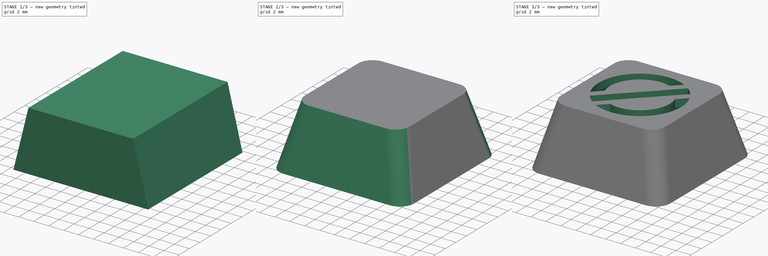
[diagram: build sequence overview — one tinted view per stage of 3, left to right]
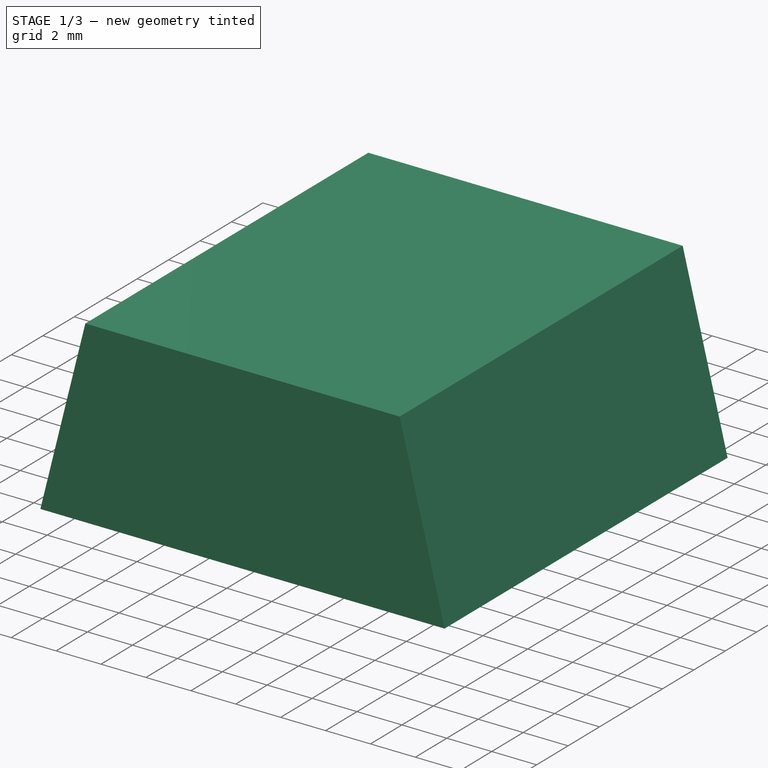
[diagram: stage 1 of 3 — iso view after this stage's code; geometry added in this stage tinted green]
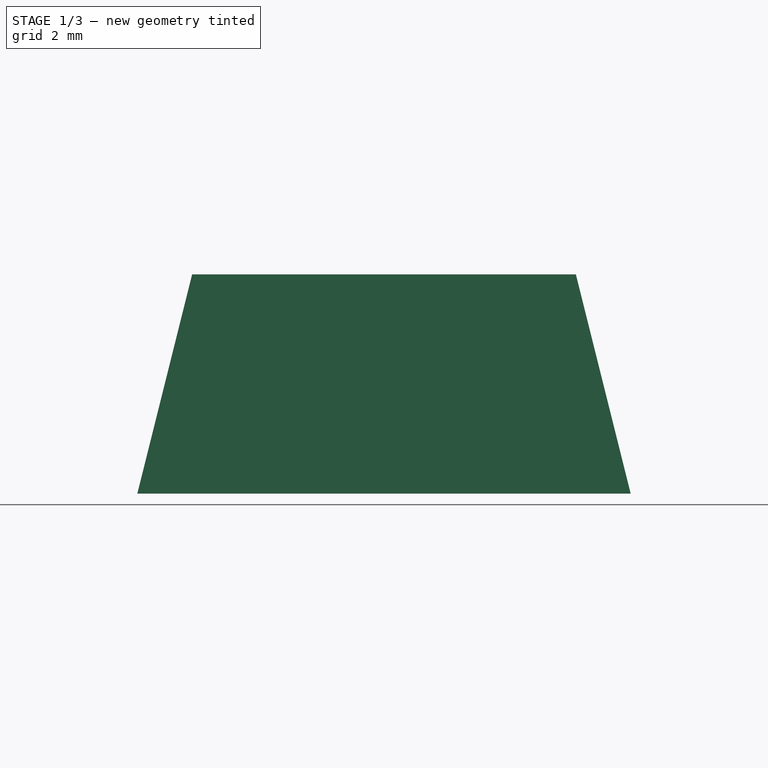
[diagram: stage 1 of 3 — front view after this stage's code; geometry added in this stage tinted green]
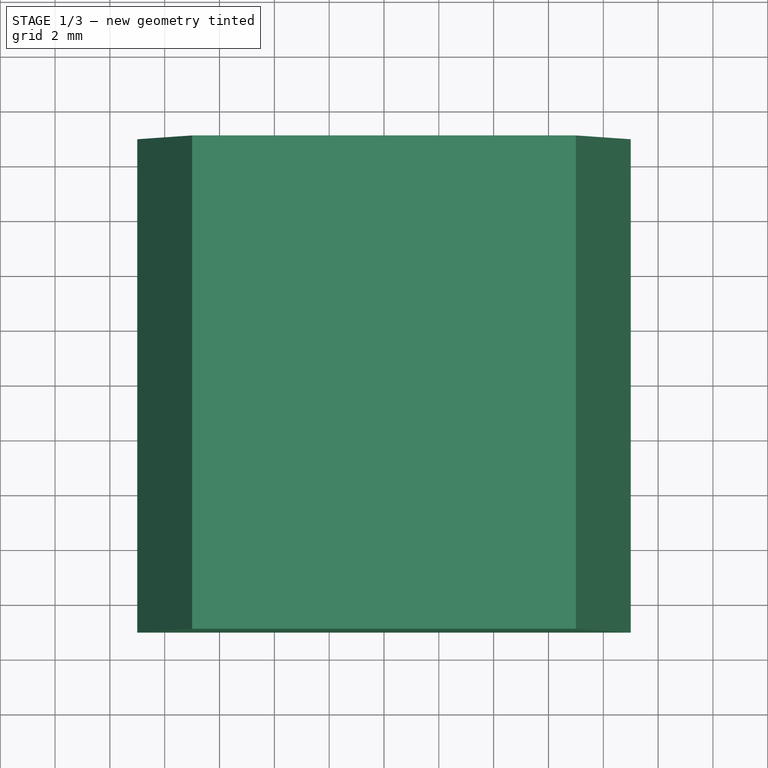
[diagram: stage 1 of 3 — top view after this stage's code; geometry added in this stage tinted green]
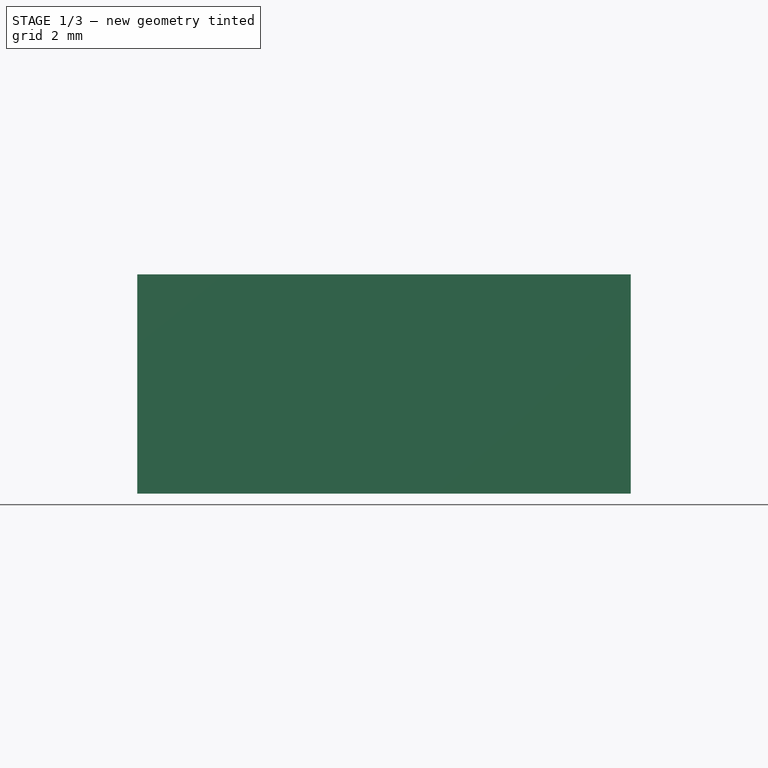
[diagram: stage 1 of 3 — right view after this stage's code; geometry added in this stage tinted green]
FCSTD DOCUMENT  (FreeCAD 1.0R38806 (Git))
Label: keycap 1u BO
License: All rights reserved
LicenseURL: http://en.wikipedia.org/wiki/All_rights_reserved
objects: Sketcher::SketchObject×4, PartDesign::Pocket×3, PartDesign::Pad×1, PartDesign::Fillet×1, PartDesign::Thickness×1, PartDesign::Body×1
note: 27 computed .brp shape members not serialized (recipe doc carries the construction recipe); baked Part::Feature solids carry a one-line shape summary decoded from their .brp

FEATURE [Sketcher::SketchObject] Sketch
  ArcFitTolerance = 1e-06
  AttachmentSupport = -> [XY_Plane]
  FullyConstrained = true
  MakeInternals = false
  MapMode = 5
  sketch-geometry (5):
    g0: LineSegment StartX=-9 StartY=-9 StartZ=0 EndX=9 EndY=-9 EndZ=0
    g1: LineSegment StartX=9 StartY=-9 StartZ=0 EndX=9 EndY=9 EndZ=0
    g2: LineSegment StartX=9 StartY=9 StartZ=0 EndX=-9 EndY=9 EndZ=0
    g3: LineSegment StartX=-9 StartY=9 StartZ=0 EndX=-9 EndY=-9 EndZ=0
    g4: GeomPoint [constr] X=0 Y=0 Z=0
  constraints (12):
    c: Coincident(g0,g1)
    c: Coincident(g1,g2)
    c: Coincident(g2,g3)
    c: Coincident(g3,g0)
    c: Horizontal(g0)
    c: Horizontal(g2)
    c: Vertical(g1)
    c: Vertical(g3)
    c: Symmetric(g2,g0,g4)
    c: Distance(g0,g2) = 18
    c: Coincident(g4,g-1)
    c: Equal(g0,g3)
FEATURE [PartDesign::Pad] Pad
  Direction = (0,0,1)
  Length = 8
  Length2 = 10
  Profile = -> Sketch
  ReferenceAxis = -> Sketch [N_Axis]
  Suppressed = false
  Type = 0
FEATURE [Sketcher::SketchObject] Sketch001
  ArcFitTolerance = 1e-06
  AttachmentSupport = -> [Pad]
  ExternalGeometry = -> [Pad]
  FullyConstrained = true
  MakeInternals = false
  MapMode = 5
  Placement = pos=(0,-9,0) rot=(1,0,0;1.5708rad)
  sketch-geometry (6):
    g0: LineSegment StartX=-9 StartY=8 StartZ=0 EndX=-9 EndY=0 EndZ=0
    g1: LineSegment StartX=9 StartY=8 StartZ=0 EndX=9 EndY=0 EndZ=0
    g2: LineSegment StartX=-9 StartY=8 StartZ=0 EndX=-7 EndY=8 EndZ=0
    g3: LineSegment StartX=9 StartY=8 StartZ=0 EndX=7 EndY=8 EndZ=0
    g4: LineSegment StartX=-7 StartY=8 StartZ=0 EndX=-9 EndY=0 EndZ=0
    g5: LineSegment StartX=7 StartY=8 StartZ=0 EndX=9 EndY=0 EndZ=0
  constraints (14):
    c: Coincident(g0,g-3)
    c: Coincident(g0,g-3)
    c: Coincident(g1,g-4)
    c: Coincident(g1,g-4)
    c: Distance(g2) = 2
    c: Coincident(g2,g0)
    c: Horizontal(g2)
    c: Coincident(g3,g1)
    c: Horizontal(g3)
    c: Equal(g2,g3)
    c: Coincident(g4,g2)
    c: Coincident(g4,g0)
    c: Coincident(g5,g3)
    c: Coincident(g5,g1)
FEATURE [PartDesign::Pocket] Pocket
  BaseFeature = -> Pad
  Direction = (0,1,-2e-16)
  Length = 5
  Length2 = 5
  Profile = -> Sketch001
  ReferenceAxis = -> Sketch001 [N_Axis]
  Suppressed = false
  Type = 1
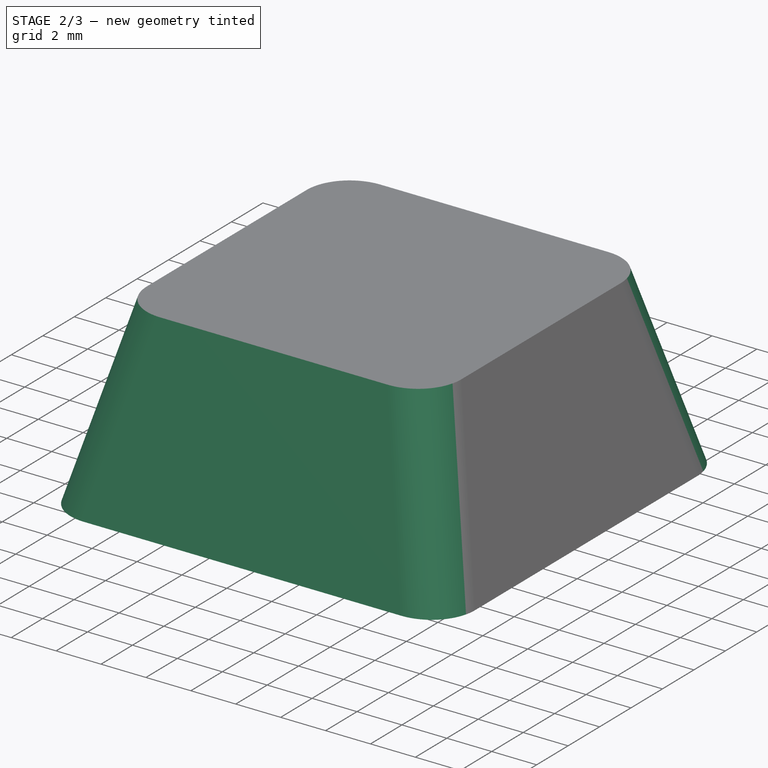
[diagram: stage 2 of 3 — iso view after this stage's code; geometry added in this stage tinted green]
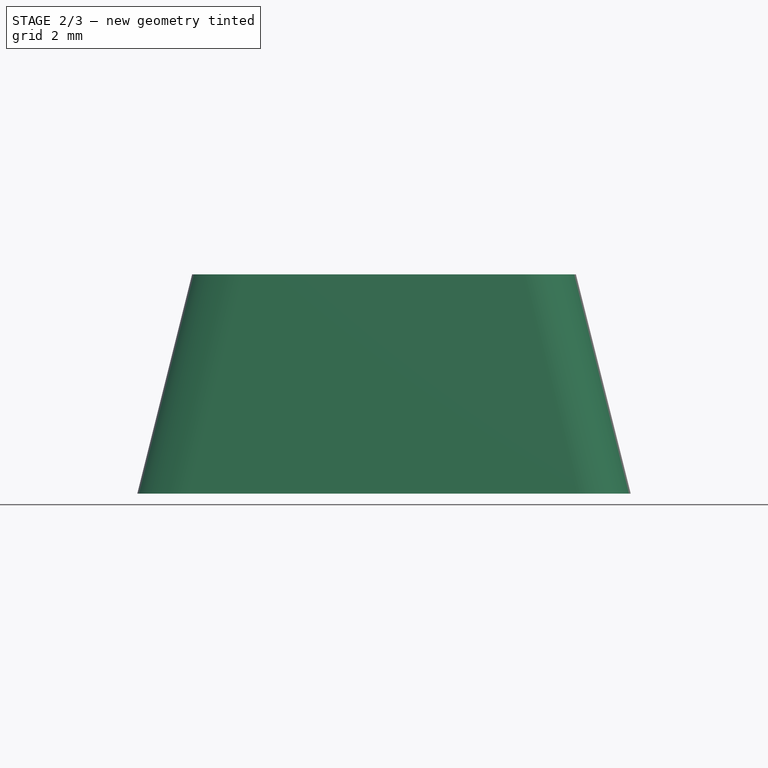
[diagram: stage 2 of 3 — front view after this stage's code; geometry added in this stage tinted green]
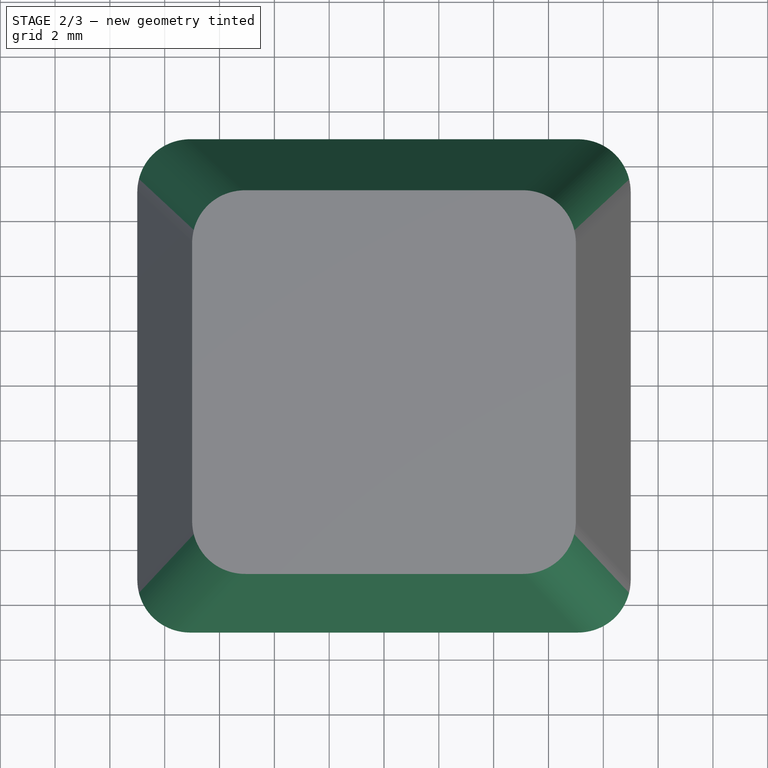
[diagram: stage 2 of 3 — top view after this stage's code; geometry added in this stage tinted green]
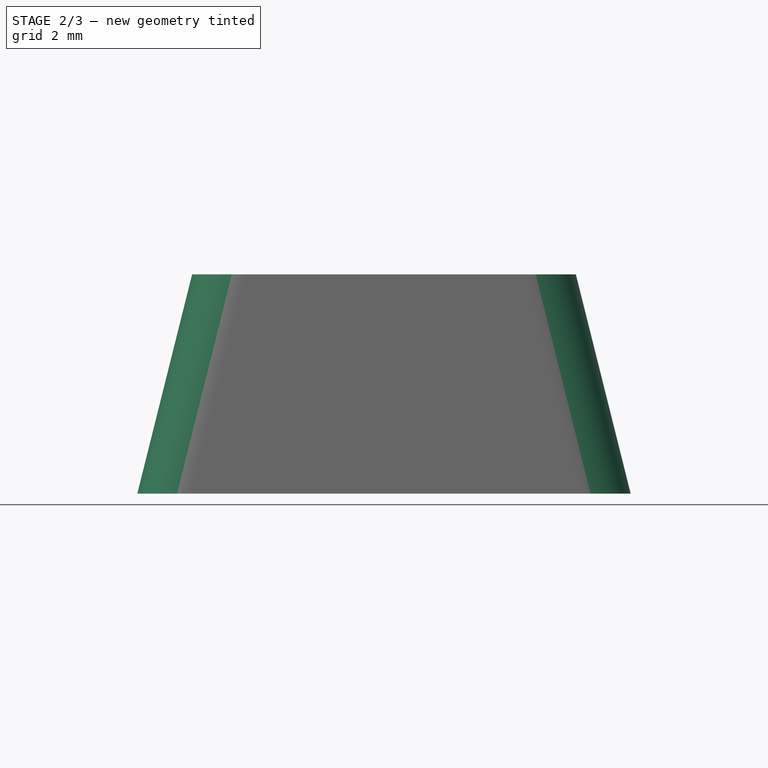
[diagram: stage 2 of 3 — right view after this stage's code; geometry added in this stage tinted green]
FEATURE [Sketcher::SketchObject] Sketch002
  ArcFitTolerance = 1e-06
  AttachmentSupport = -> [YZ_Plane]
  ExternalGeometry = -> [Pocket]
  FullyConstrained = true
  MakeInternals = false
  MapMode = 5
  Placement = pos=(0,0,0) rot=(0.57735,0.57735,0.57735;2.0944rad)
  sketch-geometry (6):
    g0: LineSegment StartX=-9 StartY=8 StartZ=0 EndX=-7 EndY=8 EndZ=0
    g1: LineSegment StartX=9 StartY=8 StartZ=0 EndX=7 EndY=8 EndZ=0
    g2: LineSegment StartX=9 StartY=8 StartZ=0 EndX=9 EndY=0 EndZ=0
    g3: LineSegment StartX=7 StartY=8 StartZ=0 EndX=9 EndY=0 EndZ=0
    g4: LineSegment StartX=-9 StartY=8 StartZ=0 EndX=-9 EndY=0 EndZ=0
    g5: LineSegment StartX=-9 StartY=0 StartZ=0 EndX=-7 EndY=8 EndZ=0
  constraints (14):
    c: Distance(g0) = 2
    c: Coincident(g0,g-3)
    c: Horizontal(g0)
    c: Horizontal(g1)
    c: Equal(g1,g0)
    c: Coincident(g-4,g1)
    c: Coincident(g2,g1)
    c: Coincident(g2,g-4)
    c: Coincident(g3,g1)
    c: Coincident(g3,g2)
    c: Coincident(g4,g0)
    c: Coincident(g4,g-3)
    c: Coincident(g5,g4)
    c: Coincident(g5,g0)
FEATURE [PartDesign::Pocket] Pocket001
  BaseFeature = -> Pocket
  Direction = (-1,0,0)
  Length = 5
  Length2 = 5
  Midplane = true
  Profile = -> Sketch002
  ReferenceAxis = -> Sketch002 [N_Axis]
  Suppressed = false
  Type = 1
FEATURE [PartDesign::Fillet] Fillet
  Base = -> Pocket001 [Edge10,Edge7,Edge5,Edge8]
  BaseFeature = -> Pocket001
  Radius = 2
  SupportTransform = false
  Suppressed = false
  UseAllEdges = false
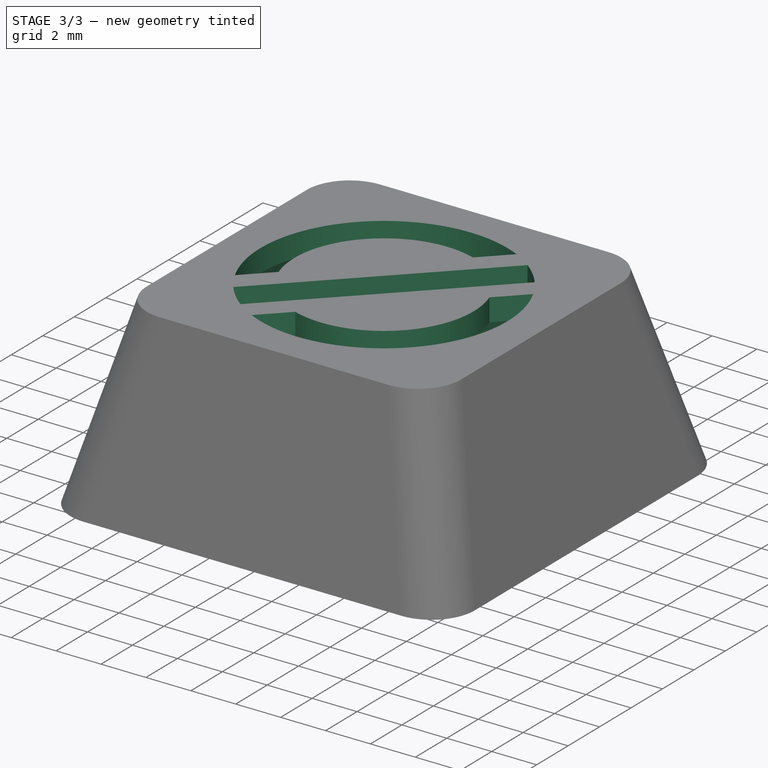
[diagram: stage 3 of 3 — iso view after this stage's code; geometry added in this stage tinted green]
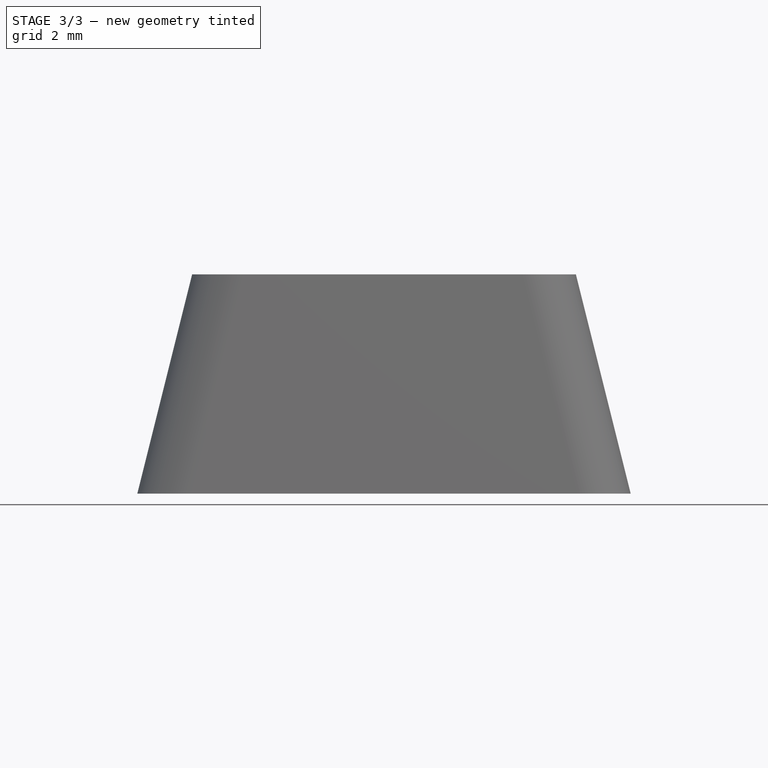
[diagram: stage 3 of 3 — front view after this stage's code; geometry added in this stage tinted green]
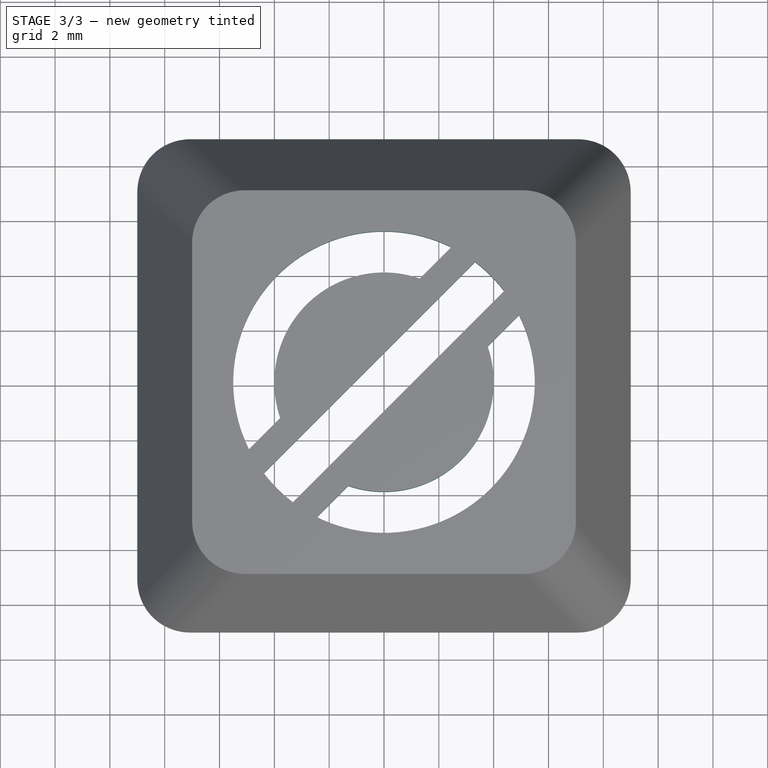
[diagram: stage 3 of 3 — top view after this stage's code; geometry added in this stage tinted green]
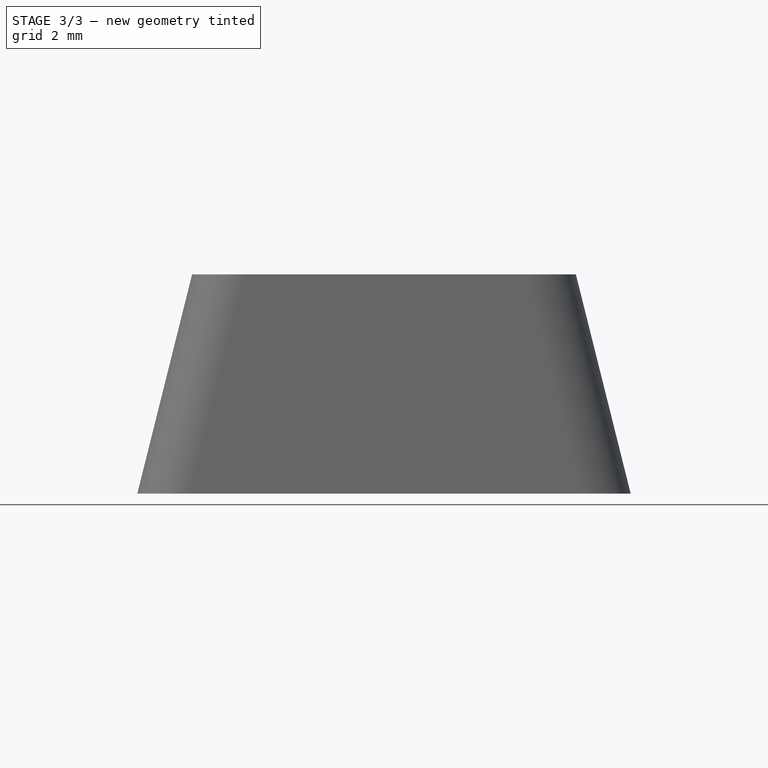
[diagram: stage 3 of 3 — right view after this stage's code; geometry added in this stage tinted green]
FEATURE [PartDesign::Thickness] Thickness
  Base = -> Fillet [Face1]
  BaseFeature = -> Fillet
  Intersection = false
  Join = 1
  Mode = 0
  Reversed = true
  SupportTransform = false
  Suppressed = false
  Value = 1
FEATURE [Sketcher::SketchObject] Sketch003
  ArcFitTolerance = 1e-06
  AttachmentSupport = -> [Thickness]
  FullyConstrained = false
  MakeInternals = false
  MapMode = 5
  Placement = pos=(0,0,8) rot=(0,0,1;0rad)
  sketch-geometry (34):
    g0: ArcOfCircle CenterX=0 CenterY=0 CenterZ=0 NormalX=0 NormalY=0 NormalZ=1 AngleXU=0 Radius=5.5 StartAngle=3.7902 EndAngle=4.06378
    g1: ArcOfCircle CenterX=0 CenterY=0 CenterZ=0 NormalX=0 NormalY=0 NormalZ=1 AngleXU=0 Radius=4 StartAngle=4.37981 EndAngle=6.61577
    g2: LineSegment [constr] StartX=0 StartY=0 StartZ=0 EndX=8.40958 EndY=0 EndZ=0
    g3: LineSegment [constr] StartX=0 StartY=0 StartZ=0 EndX=4.39033 EndY=4.39033 EndZ=0
    g4: LineSegment StartX=3.32243 StartY=4.38309 StartZ=0 EndX=-4.38309 EndY=-3.32243 EndZ=0
    g5: LineSegment StartX=-3.32243 StartY=-4.38309 StartZ=0 EndX=4.38309 EndY=3.32243 EndZ=0
    g6: GeomPoint X=-2.24793 Y=-3.30859 Z=0
    g7: GeomPoint X=-3.30859 Y=-2.24793 Z=0
    g8: GeomPoint X=-4.38309 Y=-3.32243 Z=0
    g9: GeomPoint X=-3.32243 Y=-4.38309 Z=0
    g10: GeomPoint X=2.24793 Y=3.30859 Z=0
    g11: GeomPoint X=3.30859 Y=2.24793 Z=0
    g12: GeomPoint X=3.32243 Y=4.38309 Z=0
    g13: GeomPoint X=4.38309 Y=3.32243 Z=0
    g14: LineSegment StartX=-4.92441 StartY=-2.44953 StartZ=0 EndX=-3.78081 EndY=-1.30594 EndZ=0
    g15: LineSegment StartX=4.92441 StartY=2.44953 StartZ=0 EndX=3.78081 EndY=1.30594 EndZ=0
    g16: GeomPoint [constr] X=0 Y=0 Z=0
    g17: GeomPoint [constr] X=0 Y=0 Z=0
    g18: LineSegment [constr] StartX=0 StartY=0 StartZ=0 EndX=-1.23744 EndY=1.23744 EndZ=0
    g19: LineSegment [constr] StartX=0 StartY=0 StartZ=0 EndX=1.23744 EndY=-1.23744 EndZ=0
    g20: GeomPoint [constr] X=2.44953 Y=4.92441 Z=0
    g21: GeomPoint [constr] X=1.30594 Y=3.78081 Z=0
    g22: GeomPoint [constr] X=3.78081 Y=1.30594 Z=0
    g23: GeomPoint [constr] X=4.92441 Y=2.44953 Z=0
    g24: GeomPoint [constr] X=-4.92441 Y=-2.44953 Z=0
    g25: GeomPoint [constr] X=-3.78081 Y=-1.30594 Z=0
    g26: GeomPoint [constr] X=-1.30594 Y=-3.78081 Z=0
    g27: GeomPoint [constr] X=-2.44953 Y=-4.92441 Z=0
    g28: LineSegment StartX=1.30594 StartY=3.78081 StartZ=0 EndX=2.44953 EndY=4.92441 EndZ=0
    g29: ArcOfCircle CenterX=0 CenterY=0 CenterZ=0 NormalX=0 NormalY=0 NormalZ=1 AngleXU=0 Radius=4 StartAngle=1.23821 EndAngle=3.47417
    g30: ArcOfCircle CenterX=0 CenterY=0 CenterZ=0 NormalX=0 NormalY=0 NormalZ=1 AngleXU=0 Radius=5.5 StartAngle=0.648608 EndAngle=0.922188
    g31: ArcOfCircle CenterX=0 CenterY=0 CenterZ=0 NormalX=0 NormalY=0 NormalZ=1 AngleXU=0 Radius=5.5 StartAngle=1.10921 EndAngle=3.60318
    g32: LineSegment StartX=-1.30594 StartY=-3.78081 StartZ=0 EndX=-2.44953 EndY=-4.92441 EndZ=0
    g33: ArcOfCircle CenterX=0 CenterY=0 CenterZ=0 NormalX=0 NormalY=0 NormalZ=1 AngleXU=0 Radius=5.5 StartAngle=4.2508 EndAngle=6.74477
  constraints (72):
    c: Diameter(g0) = 11
    c: Coincident(g0,g-1)
    c: Diameter(g1) = 8
    c: Coincident(g1,g0)
    c: Coincident(g2,g0)
    c: PointOnObject(g2,g-1)
    c: Coincident(g3,g0)
    c: Angle(g2,g3) = 0.785398
    c: PointOnObject(g6,g5)
    c: PointOnObject(g6,g1)
    c: PointOnObject(g7,g1)
    c: PointOnObject(g8,g0)
    c: PointOnObject(g9,g0)
    c: PointOnObject(g8,g4)
    c: PointOnObject(g9,g5)
    c: PointOnObject(g7,g4)
    c: PointOnObject(g10,g1)
    c: PointOnObject(g11,g1)
    c: PointOnObject(g11,g5)
    c: PointOnObject(g10,g4)
    c: PointOnObject(g12,g30)
    c: PointOnObject(g13,g30)
    c: PointOnObject(g13,g5)
    c: PointOnObject(g12,g4)
    c: Coincident(g16,g0)
    c: Coincident(g17,g0)
    c: Coincident(g18,g0)
    c: Angle(g3,g18) = 1.5708
    c: PointOnObject(g18,g28)
    c: Distance(g18,g18) = 1.75
    c: Coincident(g19,g0)
    c: Angle(g19,g3) = 1.5708
    c: Equal(g19,g18)
    c: Parallel(g14,g15)
    c: PointOnObject(g20,g31)
    c: PointOnObject(g21,g29)
    c: PointOnObject(g22,g1)
    c: PointOnObject(g23,g0)
    c: PointOnObject(g23,g15)
    c: PointOnObject(g22,g15)
    c: PointOnObject(g20,g28)
    c: PointOnObject(g21,g28)
    c: PointOnObject(g24,g31)
    c: PointOnObject(g25,g1)
    c: PointOnObject(g26,g1)
    c: PointOnObject(g27,g0)
    c: PointOnObject(g27,g32)
    c: PointOnObject(g26,g32)
    c: PointOnObject(g25,g14)
    c: PointOnObject(g24,g14)
    c: Coincident(g14,g31)
    c: Coincident(g14,g29)
    c: PointOnObject(g28,g29)
    c: Equal(g1,g29)
    c: PointOnObject(g29,g28)
    c: Coincident(g1,g29)
    c: Equal(g0,g30)
    c: Coincident(g0,g30)
    c: PointOnObject(g28,g31)
    c: Equal(g30,g31)
    c: PointOnObject(g31,g28)
    c: Coincident(g30,g31)
    c: Coincident(g4,g30)
    c: Coincident(g5,g30)
    c: Coincident(g15,g33)
    c: Coincident(g15,g1)
    c: Coincident(g4,g0)
    c: Equal(g0,g33)
    c: Coincident(g0,g5)
    c: Coincident(g0,g33)
    c: Coincident(g1,g32)
    c: Coincident(g32,g33)
FEATURE [PartDesign::Pocket] Pocket002
  BaseFeature = -> Thickness
  Direction = (0,0,-1)
  Length = 1
  Length2 = 5
  Profile = -> Sketch003
  ReferenceAxis = -> Sketch003 [N_Axis]
  Suppressed = false
  Type = 0
FEATURE [PartDesign::Body] Body
  AllowCompound = false
  Group = -> [Sketch,Pad,Sketch001,Pocket,Sketch002,Pocket001,Fillet,Thickness,Sketch003,Pocket002]
  Origin = -> Origin
  Tip = -> Pocket002
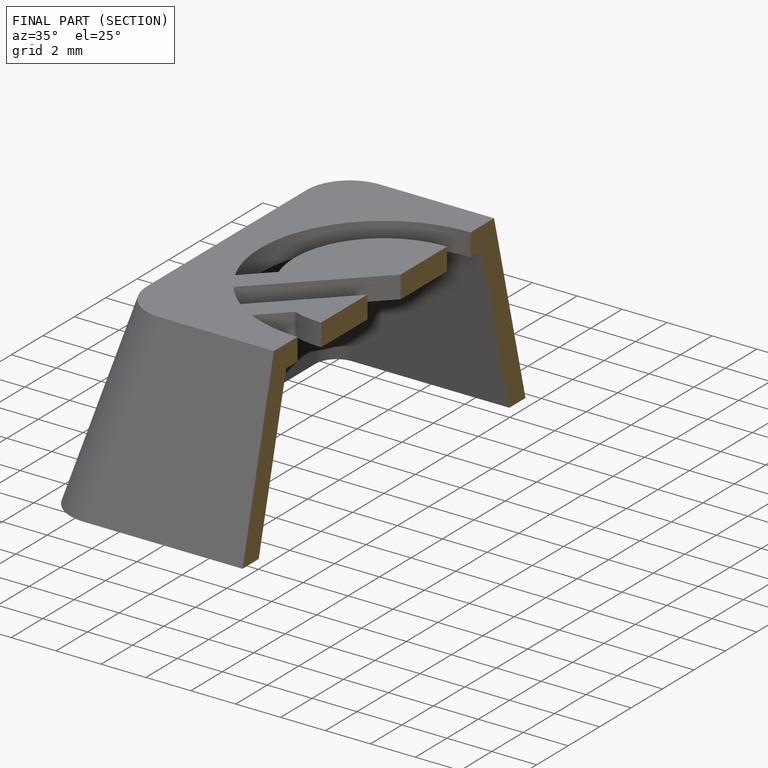
[diagram: finished part — half-section view (interior)]
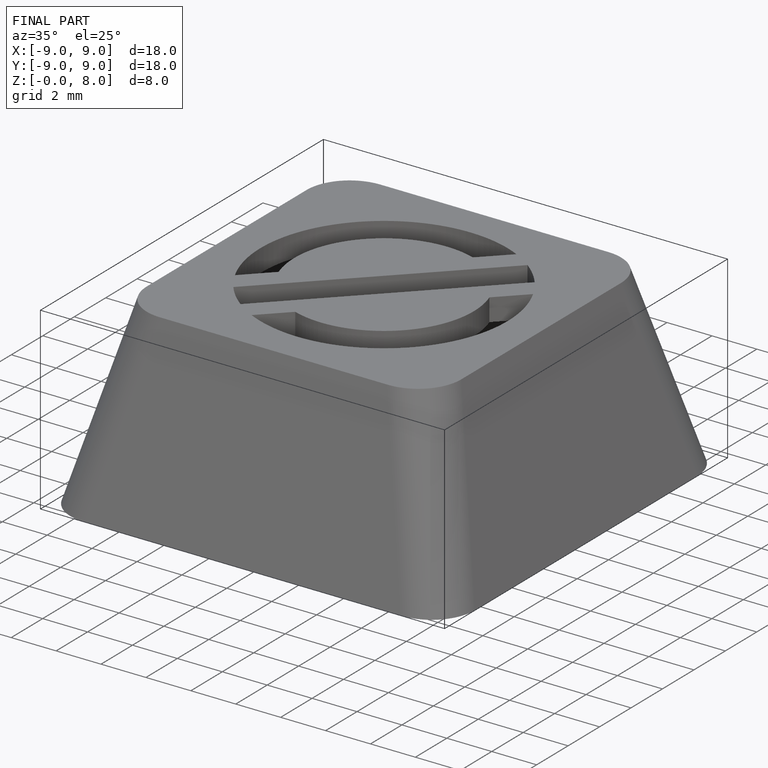
[diagram: finished part — iso view with bounding-box wireframe]
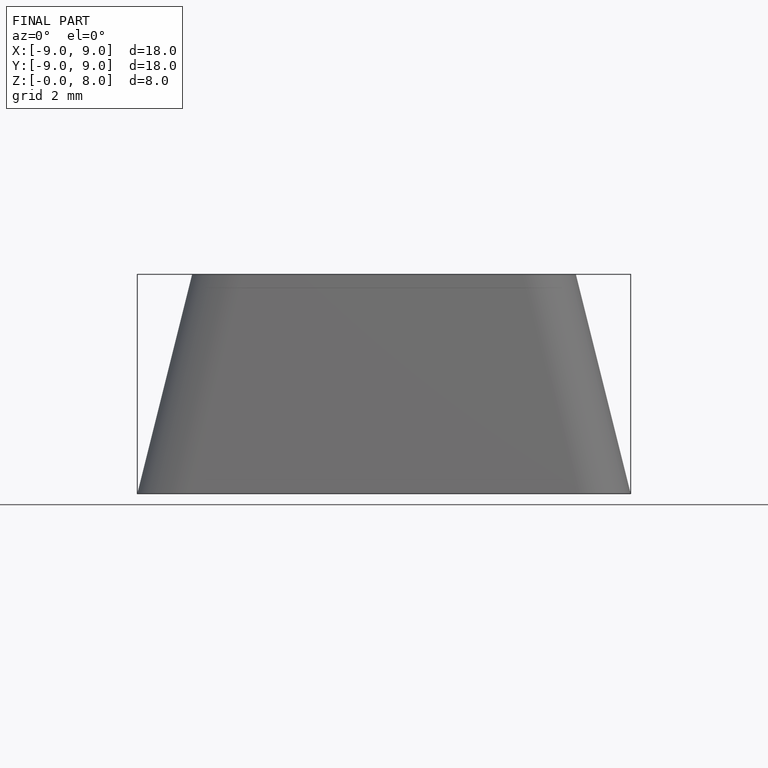
[diagram: finished part — front view with bounding-box wireframe]
